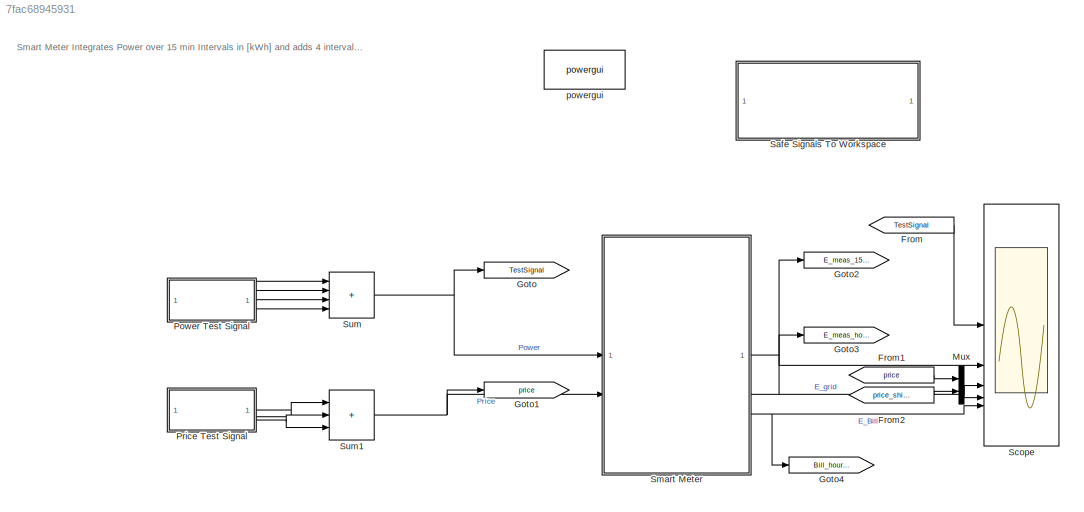
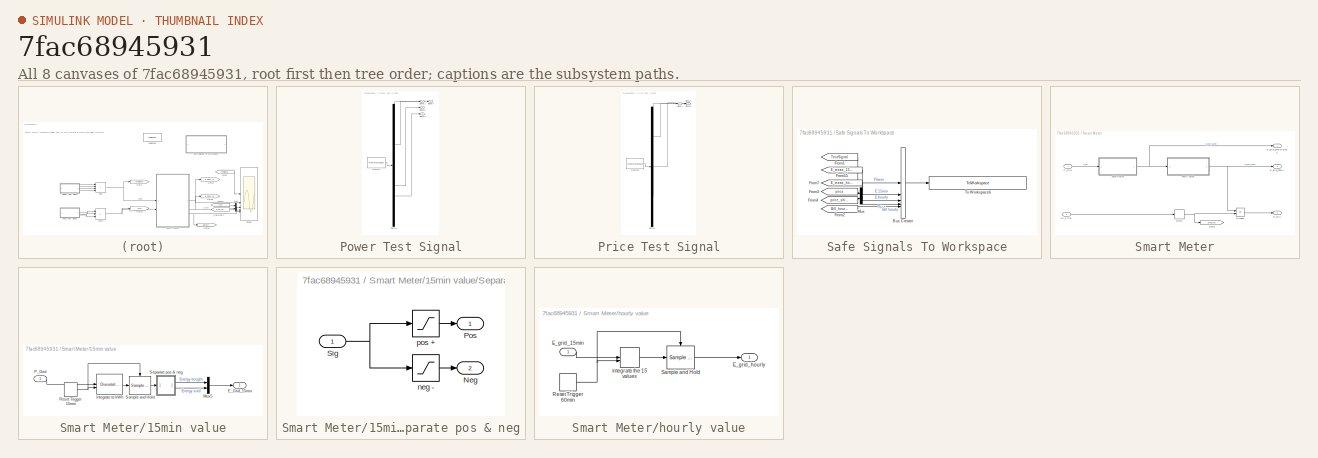
[diagram: thumbnail index - all 8 canvases of the model, root first then tree order]
MODEL slx_7fac68945931
KIND model
CONFIG AbsTol = auto
CONFIG EnableMultiTasking = off
CONFIG FixedStep = auto
CONFIG InitFcn = Ts = 1; % Step time as 1second
CONFIG MaxStep = auto
CONFIG MinStep = auto
CONFIG RelTol = 1e-3
CONFIG SampleTimeConstraint = Unconstrained
CONFIG SolverName = VariableStepAuto
CONFIG StartTime = 0.0
CONFIG StopFcn = plotResults = true ;% turn off if unwanted\n\nif plotResults\n    \nout = out_SmartMeterModel.SmartMeterValidationScope;\n\n% Get Signals from simulation output.\ntime = out.time;\nTestSignal = out.signals.values(:,1);\nE_meas_15min = out.signals.values(:,2:3);\nE_meas_hourly = out.signals.values(:,4:5);\nprice = out.signals.values(:,6:7);\nBill_hourly = out.signals.values(:,8:9);\n\n%% Create Figure\nfig_SmartM...<+2308ch>
CONFIG StopTime = 3600*7.5
BLOCK [From] From
  GotoTag = TestSignal
  TagVisibility = global
BLOCK [From] From1
  GotoTag = price
  TagVisibility = global
BLOCK [From] From2
  GotoTag = price_shifted
  TagVisibility = global
BLOCK [Goto] Goto
  GotoTag = TestSignal
  TagVisibility = global
BLOCK [Goto] Goto1
  GotoTag = price
  TagVisibility = global
BLOCK [Goto] Goto2
  GotoTag = E_meas_15min
  TagVisibility = global
BLOCK [Goto] Goto3
  GotoTag = E_meas_hourly
  TagVisibility = global
BLOCK [Goto] Goto4
  GotoTag = Bill_hourly
  TagVisibility = global
BLOCK [Mux] Mux
  DisplayOption = bar
  Inputs = 2
BLOCK [SubSystem] Power Test Signal
  ClipboardFcn = sigbuilder_block('clipboard');
  CloseFcn = sigbuilder_block('close');
  ContinueFcn = sigbuilder_block('continue');
  CopyFcn = sigbuilder_block('copy');
  DeleteFcn = sigbuilder_block('delete');
  LoadFcn = sigbuilder_block('load');
  MaskHideContents = on
  ModelCloseFcn = sigbuilder_block('modelClose');
  NameChangeFcn = sigbuilder_block('namechange');
  OpenFcn = sigbuilder_block('open',[38.4 99 759.6 460.8 ]);
  PauseFcn = sigbuilder_block('pause');
  PreSaveFcn = sigbuilder_block('preSave');
  StartFcn = sigbuilder_block('start');
  StopFcn = sigbuilder_block('stop');
  Tag = STV Subsys
BLOCK [Demux] Power Test Signal/Demux
  DisplayOption = none
  Tag = STV Demux
BLOCK [FromWorkspace] Power Test Signal/FromWs
  Tag = STV FromWs
  VariableName = tuvar
BLOCK [Outport] Power Test Signal/Signal 1
  Tag = STV Outport
BLOCK [Outport] Power Test Signal/Signal 2
  Port = 2
  Tag = STV Outport
BLOCK [Outport] Power Test Signal/Signal 3
  Port = 3
  Tag = STV Outport
BLOCK [Outport] Power Test Signal/Signal 4
  Port = 4
  Tag = STV Outport
BLOCK [SubSystem] Price Test Signal
  ClipboardFcn = sigbuilder_block('clipboard');
  CloseFcn = sigbuilder_block('close');
  ContinueFcn = sigbuilder_block('continue');
  CopyFcn = sigbuilder_block('copy');
  DeleteFcn = sigbuilder_block('delete');
  LoadFcn = sigbuilder_block('load');
  MaskHideContents = on
  ModelCloseFcn = sigbuilder_block('modelClose');
  NameChangeFcn = sigbuilder_block('namechange');
  OpenFcn = sigbuilder_block('open',[110.4 45 759.6 460.8 ]);
  PauseFcn = sigbuilder_block('pause');
  PreSaveFcn = sigbuilder_block('preSave');
  StartFcn = sigbuilder_block('start');
  StopFcn = sigbuilder_block('stop');
  Tag = STV Subsys
BLOCK [Demux] Price Test Signal/Demux
  DisplayOption = none
  Outputs = 3
  Tag = STV Demux
BLOCK [FromWorkspace] Price Test Signal/FromWs
  Tag = STV FromWs
  VariableName = tuvar
BLOCK [Outport] Price Test Signal/Signal 1
  Tag = STV Outport
BLOCK [Outport] Price Test Signal/Signal 2
  Port = 3
  Tag = STV Outport
BLOCK [Outport] Price Test Signal/Signal 4
  Port = 2
  Tag = STV Outport
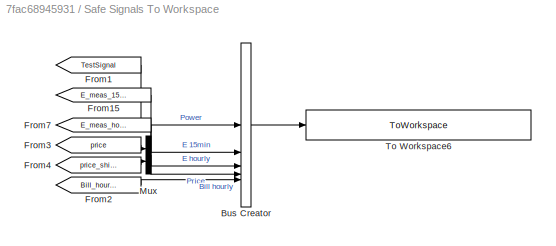
BLOCK [SubSystem] Safe Signals To Workspace
BLOCK [BusCreator] Safe Signals To Workspace/Bus Creator
  DisplayOption = bar
  InheritFromInputs = on
  Inputs = 5
BLOCK [From] Safe Signals To Workspace/From1
  GotoTag = TestSignal
  TagVisibility = global
BLOCK [From] Safe Signals To Workspace/From15
  GotoTag = E_meas_15min
  TagVisibility = global
BLOCK [From] Safe Signals To Workspace/From2
  GotoTag = Bill_hourly
  TagVisibility = global
BLOCK [From] Safe Signals To Workspace/From3
  GotoTag = price
  TagVisibility = global
BLOCK [From] Safe Signals To Workspace/From4
  GotoTag = price_shifted
  TagVisibility = global
BLOCK [From] Safe Signals To Workspace/From7
  GotoTag = E_meas_hourly
  TagVisibility = global
BLOCK [Mux] Safe Signals To Workspace/Mux
  DisplayOption = bar
  Inputs = 2
BLOCK [ToWorkspace] Safe Signals To Workspace/To Workspace6
  FixptAsFi = on
  MaxDataPoints = inf
  SampleTime = -1
  SaveFormat = Structure With Time
  VariableName = SmartMeterValidationScope
BLOCK [Scope] Scope
  Floating = off
  NumInputPorts = 5
  ScopeSpecificationString = Simulink.scopes.TimeScopeBlockCfg('CurrentConfiguration', extmgr.ConfigurationSet(extmgr.Configuration('Core','General UI',true),extmgr.Configuration('Core','Source UI',true),extmgr.Configuration('Sources','WiredSimulink',true),extmgr.Configuration('Visuals','Time Domain',true,'SerializedDisplays',{struct('MinYLimReal','-2.5','MaxYLimReal','2.5','YLabelReal','','MinYLimMag','0.00000','MaxYLimMag',...<+3674ch>
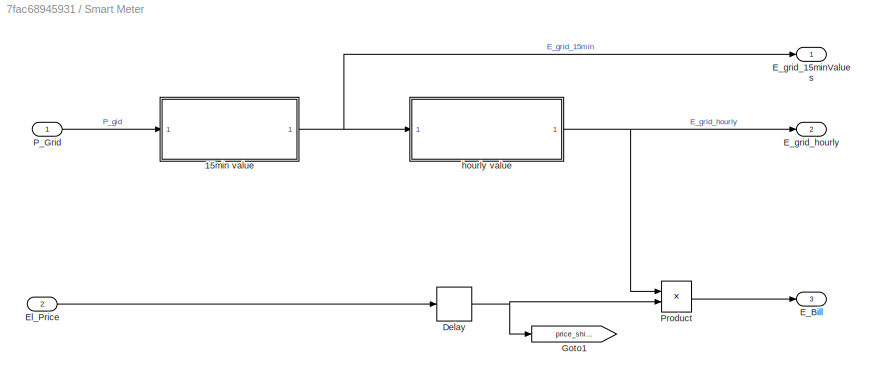
BLOCK [SubSystem] Smart Meter
BLOCK [SubSystem] Smart Meter/15min value
BLOCK [Outport] Smart Meter/15min value/E_Grid_15min
BLOCK [DiscreteIntegrator] Smart Meter/15min value/Integrate to kWh
  ExternalReset = falling
  ICPrevOutput = DiscIntNeverNeededParam
  ICPrevScaledInput = DiscIntNeverNeededParam
  InitialConditionSetting = Auto
  IntegratorMethod = Integration: Trapezoidal
  SampleTime = -1
  gainval = 1/(3600)
BLOCK [Mux] Smart Meter/15min value/Mux5
  DisplayOption = bar
  Inputs = 2
BLOCK [Inport] Smart Meter/15min value/P_Grid
BLOCK [DiscretePulseGenerator] Smart Meter/15min value/Reset Trigger 15min
  Period = 15*60
  SampleTime = Ts
BLOCK [Reference] Smart Meter/15min value/Sample and Hold  REF=dspsigops/Sample
and Hold
  LibrarySourceBlock = dsphdlsupportsigops/Sample\nand Hold
  SourceBlock = dspsigops/Sample\nand Hold
  SourceType = Sample and Hold
BLOCK [SubSystem] Smart Meter/15min value/Separate pos & neg
BLOCK [Outport] Smart Meter/15min value/Separate pos & neg/Neg
  Port = 2
BLOCK [Outport] Smart Meter/15min value/Separate pos & neg/Pos
BLOCK [Inport] Smart Meter/15min value/Separate pos & neg/Sig
BLOCK [Saturate] Smart Meter/15min value/Separate pos & neg/neg -
  LowerLimit = -inf
  UpperLimit = 0
BLOCK [Saturate] Smart Meter/15min value/Separate pos & neg/pos +
  LowerLimit = 0
  UpperLimit = inf
BLOCK [Delay] Smart Meter/Delay
  DelayLength = 5*15*60
  InputPortMap = u0
  SampleTime = 1
BLOCK [Outport] Smart Meter/E_Bill
  Port = 3
BLOCK [Outport] Smart Meter/E_grid_15minValues
BLOCK [Outport] Smart Meter/E_grid_hourly
  Port = 2
BLOCK [Inport] Smart Meter/El_Price
  Port = 2
BLOCK [Goto] Smart Meter/Goto1
  GotoTag = price_shifted
  TagVisibility = global
BLOCK [Inport] Smart Meter/P_Grid
BLOCK [Product] Smart Meter/Product
BLOCK [SubSystem] Smart Meter/hourly value
BLOCK [Inport] Smart Meter/hourly value/E_grid_15min
BLOCK [Outport] Smart Meter/hourly value/E_grid_hourly 
BLOCK [DiscretePulseGenerator] Smart Meter/hourly value/Reset Trigger 60min
  Period = 60*60
  PhaseDelay = 900
BLOCK [Reference] Smart Meter/hourly value/Sample and Hold  REF=dspsigops/Sample
and Hold
  LibrarySourceBlock = dsphdlsupportsigops/Sample\nand Hold
  SourceBlock = dspsigops/Sample\nand Hold
  SourceType = Sample and Hold
BLOCK [DiscreteIntegrator] Smart Meter/hourly value/integrate the 15 values
  ExternalReset = falling
  ICPrevOutput = DiscIntNeverNeededParam
  ICPrevScaledInput = DiscIntNeverNeededParam
  InitialConditionSetting = Auto
  IntegratorMethod = Integration: Backward Euler
  SampleTime = -1
  gainval = 1/(3600/4)
BLOCK [Sum] Sum
  IconShape = rectangular
  Inputs = |++++
BLOCK [Sum] Sum1
  IconShape = rectangular
  Inputs = +++
BLOCK [Reference] powergui  REF=spspowerguiLib/powergui
  LibrarySourceBlock = sps_lib/powergui
  Priority = 1
  SourceBlock = spspowerguiLib/powergui
  SourceType = PSB option menu block
ANNOTATION (root): Smart Meter Integrates Power over 15 min Intervals in [kWh] and adds 4 intervals to an hourly Value in [kWh].
LINE From1:1 -> Mux:1
LINE From2:1 -> Mux:2
LINE From:1 -> Scope:1
LINE Mux:1 -> Scope:4
LINE Power Test Signal:1 -> Sum:1
LINE Power Test Signal:2 -> Sum:2
LINE Power Test Signal:3 -> Sum:3
LINE Power Test Signal:4 -> Sum:4
LINE Price Test Signal:1 -> Sum1:1
LINE Price Test Signal:2 -> Sum1:2
LINE Price Test Signal:3 -> Sum1:3
LINE Safe Signals To Workspace/Bus Creator:1 -> Safe Signals To Workspace/To Workspace6:1
LINE Safe Signals To Workspace/From15:1 -> Safe Signals To Workspace/Bus Creator:2
LINE Safe Signals To Workspace/From1:1 -> Safe Signals To Workspace/Bus Creator:1
LINE Safe Signals To Workspace/From2:1 -> Safe Signals To Workspace/Bus Creator:5
LINE Safe Signals To Workspace/From3:1 -> Safe Signals To Workspace/Mux:1
LINE Safe Signals To Workspace/From4:1 -> Safe Signals To Workspace/Mux:2
LINE Safe Signals To Workspace/From7:1 -> Safe Signals To Workspace/Bus Creator:3
LINE Safe Signals To Workspace/Mux:1 -> Safe Signals To Workspace/Bus Creator:4
LINE Smart Meter/15min value/Integrate to kWh:1 -> Smart Meter/15min value/Sample and Hold:1
LINE Smart Meter/15min value/Mux5:1 -> Smart Meter/15min value/E_Grid_15min:1
LINE Smart Meter/15min value/P_Grid:1 -> Smart Meter/15min value/Integrate to kWh:1
NET Smart Meter/15min value/Reset Trigger 15min:1 -> Smart Meter/15min value/Integrate to kWh:2, Smart Meter/15min value/Sample and Hold:trigger
LINE Smart Meter/15min value/Sample and Hold:1 -> Smart Meter/15min value/Separate pos & neg:1
NET Smart Meter/15min value/Separate pos & neg/Sig:1 -> Smart Meter/15min value/Separate pos & neg/neg -:1, Smart Meter/15min value/Separate pos & neg/pos +:1
LINE Smart Meter/15min value/Separate pos & neg/neg -:1 -> Smart Meter/15min value/Separate pos & neg/Neg:1
LINE Smart Meter/15min value/Separate pos & neg/pos +:1 -> Smart Meter/15min value/Separate pos & neg/Pos:1
LINE Smart Meter/15min value/Separate pos & neg:1 -> Smart Meter/15min value/Mux5:1
LINE Smart Meter/15min value/Separate pos & neg:2 -> Smart Meter/15min value/Mux5:2
NET Smart Meter/15min value:1 -> Smart Meter/E_grid_15minValues:1, Smart Meter/hourly value:1
NET Smart Meter/Delay:1 -> Smart Meter/Goto1:1, Smart Meter/Product:2
LINE Smart Meter/El_Price:1 -> Smart Meter/Delay:1
LINE Smart Meter/P_Grid:1 -> Smart Meter/15min value:1
LINE Smart Meter/Product:1 -> Smart Meter/E_Bill:1
LINE Smart Meter/hourly value/E_grid_15min:1 -> Smart Meter/hourly value/integrate the 15 values:1
NET Smart Meter/hourly value/Reset Trigger 60min:1 -> Smart Meter/hourly value/Sample and Hold:trigger, Smart Meter/hourly value/integrate the 15 values:2
LINE Smart Meter/hourly value/Sample and Hold:1 -> Smart Meter/hourly value/E_grid_hourly :1
LINE Smart Meter/hourly value/integrate the 15 values:1 -> Smart Meter/hourly value/Sample and Hold:1
NET Smart Meter/hourly value:1 -> Smart Meter/E_grid_hourly:1, Smart Meter/Product:1
NET Smart Meter:1 -> Goto2:1, Scope:2
NET Smart Meter:2 -> Goto3:1, Scope:3
NET Smart Meter:3 -> Goto4:1, Scope:5
NET Sum1:1 -> Goto1:1, Smart Meter:2
NET Sum:1 -> Goto:1, Smart Meter:1
note: NET lines group one-source signal fan-out (src -> all destinations, sorted); 1:1 wires keep LINE
